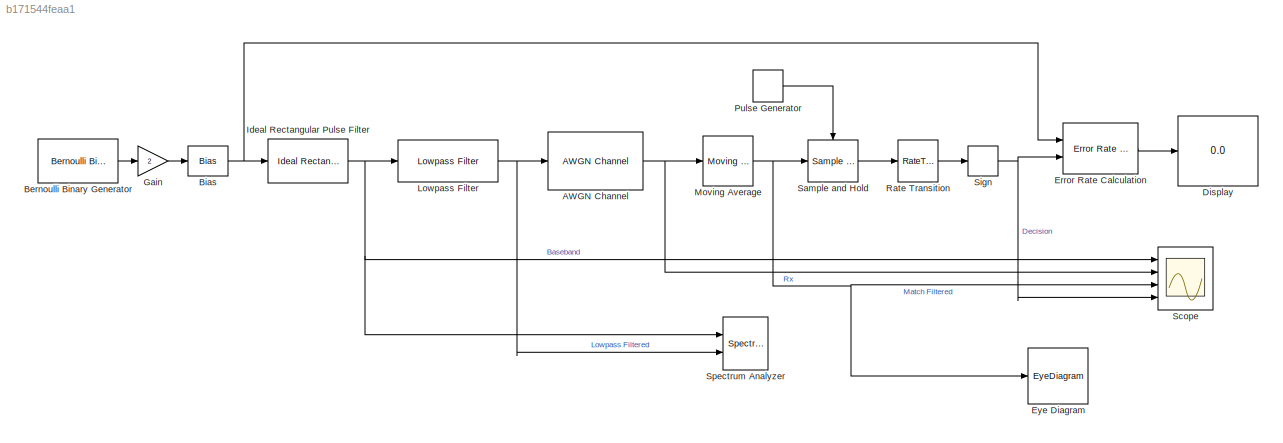
MODEL slx_b171544feaa1
KIND model
CONFIG AbsTol = auto
CONFIG EnableMultiTasking = off
CONFIG FixedStep = auto
CONFIG MaxStep = auto
CONFIG MinStep = auto
CONFIG RelTol = 1e-3
CONFIG SampleTimeConstraint = Unconstrained
CONFIG SolverName = VariableStepAuto
CONFIG StartTime = 0.0
CONFIG StopTime = 10
BLOCK [Reference] AWGN Channel  REF=commchan3/AWGN
Channel
  Ports = [1, 1]
  SourceBlock = commchan3/AWGN\nChannel
  SourceProductBaseCode = CM
  SourceType = AWGN Channel
  UserDataPersistent = on
BLOCK [Reference] Bernoulli Binary Generator  REF=commrandsrc3/Bernoulli Binary
Generator
  Ports = [0, 1]
  SourceBlock = commrandsrc3/Bernoulli Binary\nGenerator
  SourceProductBaseCode = CM
  SourceType = Bernoulli Binary Generator
BLOCK [Bias] Bias
  Bias = -1
  SaturateOnIntegerOverflow = off
BLOCK [Display] Display
  Decimation = 1
  Ports = [1]
BLOCK [Reference] Error Rate Calculation  REF=commsink2/Error Rate
Calculation
  Ports = [2, 1]
  SourceBlock = commsink2/Error Rate\nCalculation
  SourceProductBaseCode = CM
  SourceType = Error Rate Calculation
BLOCK [EyeDiagram] Eye Diagram
  Commented = on
  Ports = [1]
  ScopeSpecificationString = comm.scopes.EyeDiagramBlockCfg('CurrentConfiguration', extmgr.ConfigurationSet(extmgr.Configuration('Core','General UI',true),extmgr.Configuration('Core','Source UI',true),extmgr.Configuration('Sources','WiredSimulink',true),extmgr.Configuration('Sources','Simulink',false),extmgr.Configuration('Sources','File',false),extmgr.Configuration('Sources','Workspace',false),extmgr.Configuration('Sources',...<+1556ch>
BLOCK [Gain] Gain
  Gain = 2
BLOCK [Reference] Ideal Rectangular Pulse Filter  REF=commfilt2/Ideal Rectangular
Pulse Filter
  Ports = [1, 1]
  SourceBlock = commfilt2/Ideal Rectangular\nPulse Filter
  SourceProductBaseCode = CM
  SourceType = Ideal Rectangular Pulse Filter
  UserDataPersistent = on
BLOCK [Reference] Lowpass Filter  REF=dspfdesign/Lowpass Filter
  Ports = [1, 1]
  SourceBlock = dspfdesign/Lowpass Filter
  SourceProductBaseCode = DS
  SourceType = dsp.simulink.LowpassFilter
BLOCK [Reference] Moving Average  REF=dspstat3/Moving
Average
  Ports = [1, 1]
  SourceBlock = dspstat3/Moving\nAverage
  SourceProductBaseCode = DS
  SourceType = dsp.simulink.MovingAverage
BLOCK [DiscretePulseGenerator] Pulse Generator
  Period = 100
  PhaseDelay = 28
  Ports = [0, 1]
  SampleTime = 10e-6
BLOCK [RateTransition] Rate Transition
  OutPortSampleTime = 1e-3
BLOCK [Reference] Sample and Hold  REF=dspsigops/Sample
and Hold
  Ports = [1, 1, 0, 1]
  SourceBlock = dspsigops/Sample\nand Hold
  SourceProductBaseCode = DS
  SourceType = Sample and Hold
BLOCK [Scope] Scope
  Commented = on
  Floating = off
  NumInputPorts = 4
  Ports = [4]
  ScopeSpecificationString = Simulink.scopes.TimeScopeBlockCfg('CurrentConfiguration', extmgr.ConfigurationSet(extmgr.Configuration('Core','General UI',true),extmgr.Configuration('Core','Source UI',true),extmgr.Configuration('Sources','WiredSimulink',true),extmgr.Configuration('Visuals','Time Domain',true,'SerializedDisplays',{struct('MinYLimReal','-1.25','MaxYLimReal','1.25','YLabelReal','','MinYLimMag','0.00000','MaxYLimMag...<+3385ch>
BLOCK [Signum] Sign
BLOCK [SpectrumAnalyzer] Spectrum Analyzer
  Commented = on
  NumInputPorts = 2
  Ports = [2]
  ScopeSpecificationString = spbscopes.SpectrumAnalyzerBlockCfg('CurrentConfiguration', extmgr.ConfigurationSet(extmgr.Configuration('Core','General UI',true),extmgr.Configuration('Core','Source UI',true),extmgr.Configuration('Sources','WiredSimulink',true),extmgr.Configuration('Visuals','Spectrum',true,'AxesProperties',struct('Color',{[0 0 0],[0 0 0]},'XColor',{[0.686274509803922 0.686274509803922 0.686274509803922],[0.68627...<+2255ch>
NET AWGN Channel:1 -> Moving Average:1, Scope:2
LINE Bernoulli Binary Generator:1 -> Gain:1
NET Bias:1 -> Error Rate Calculation:1, Ideal Rectangular Pulse Filter:1
LINE Error Rate Calculation:1 -> Display:1
LINE Gain:1 -> Bias:1
NET Ideal Rectangular Pulse Filter:1 -> Lowpass Filter:1, Scope:1, Spectrum Analyzer:1
NET Lowpass Filter:1 -> AWGN Channel:1, Spectrum Analyzer:2
NET Moving Average:1 -> Eye Diagram:1, Sample and Hold:1, Scope:3
LINE Pulse Generator:1 -> Sample and Hold:trigger
LINE Rate Transition:1 -> Sign:1
LINE Sample and Hold:1 -> Rate Transition:1
NET Sign:1 -> Error Rate Calculation:2, Scope:4
note: NET lines group one-source signal fan-out (src -> all destinations, sorted); 1:1 wires keep LINE
